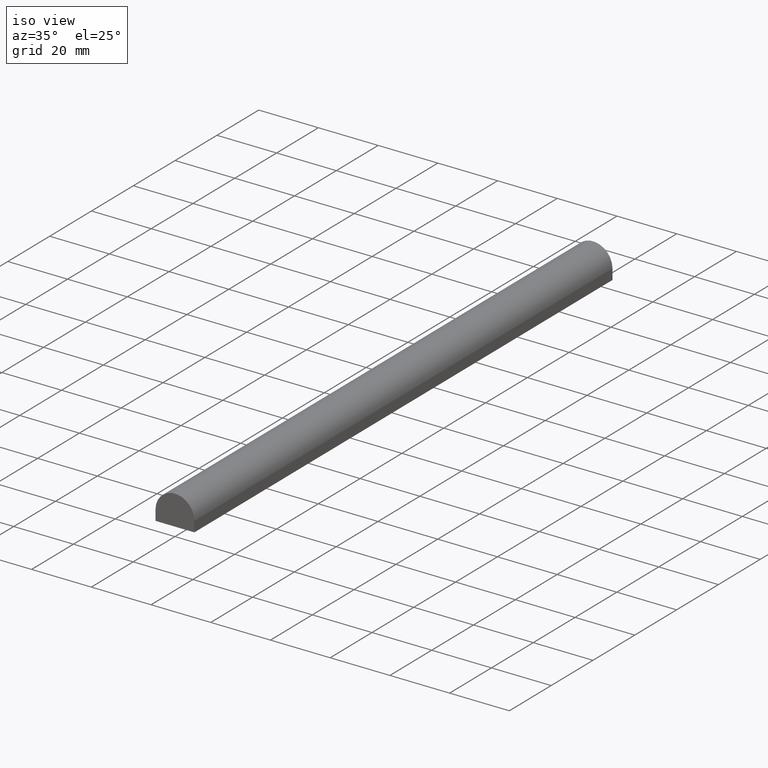
[diagram: clean part render]
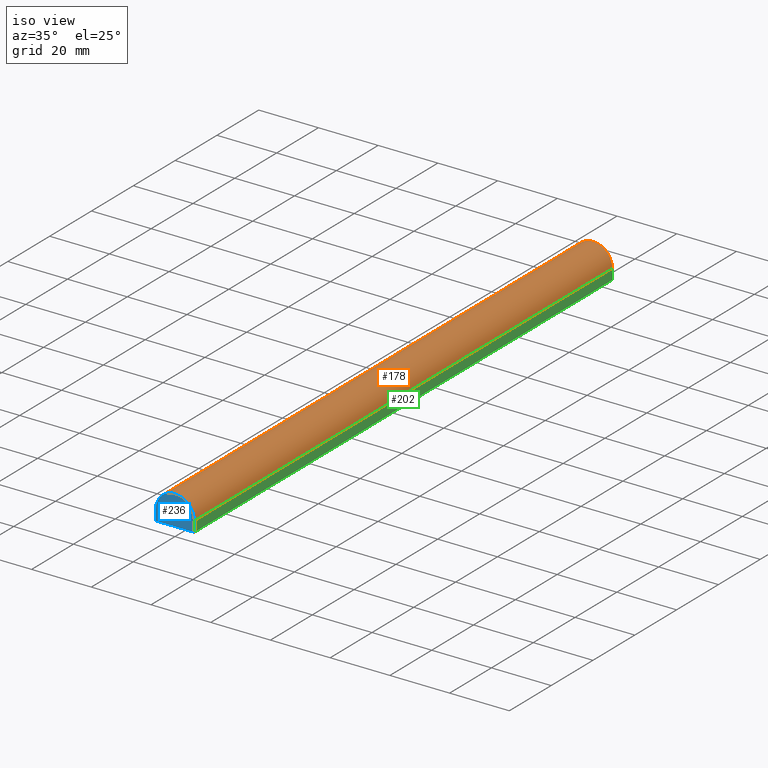
[diagram: same view with three faces highlighted in distinct colors, each labeled with its STEP entity id]
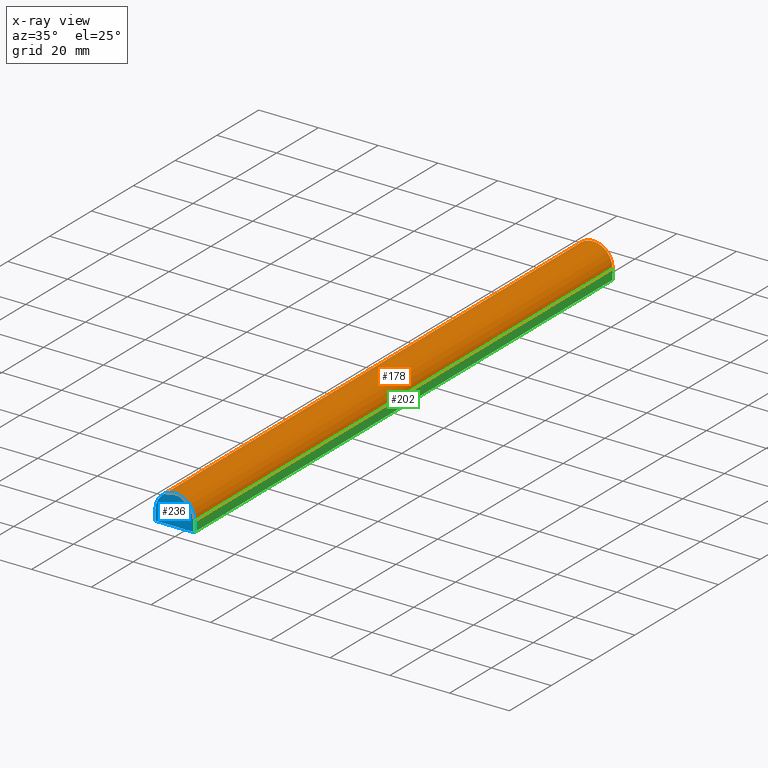
[diagram: x-ray of the same camera — body ghosted, the three highlighted faces saturated]
A machine part, iso view with three faces highlighted in distinct colors.
The next image is the same camera in x-ray (body ghosted, the three faces saturated) — at least one of them is partly hidden behind the body in this view.
Their STEP definitions:

[orange] entity #178 — the highlighted cylindrical surface (edge-blend (fillet) strip) has radius 6.5 mm, axis along (0, -1, 0).
#8 = CARTESIAN_POINT ( 'NONE',  ( 6.500000000000000000, 1000.000000000000000, -1.500000000000000000 ) ) ;
#11 = ORIENTED_EDGE ( 'NONE', *, *, #72, .T. ) ;
#13 = CYLINDRICAL_SURFACE ( 'NONE', #180, 6.500000000000000900 ) ;
#22 = CIRCLE ( 'NONE', #215, 6.499999999999999100 ) ;
#24 = VERTEX_POINT ( 'NONE', #158 ) ;
#30 = CARTESIAN_POINT ( 'NONE',  ( 0.0000000000000000000, 0.0000000000000000000, -1.500000000000000000 ) ) ;
#42 = CARTESIAN_POINT ( 'NONE',  ( 0.0000000000000000000, 200.0000000000000000, -1.500000000000000000 ) ) ;
#47 = EDGE_CURVE ( 'NONE', #24, #65, #119, .T. ) ;
#54 = DIRECTION ( 'NONE',  ( 0.0000000000000000000, 0.0000000000000000000, -1.000000000000000000 ) ) ;
#56 = EDGE_LOOP ( 'NONE', ( #120, #217, #11, #195 ) ) ;
#61 = EDGE_CURVE ( 'NONE', #65, #135, #174, .T. ) ;
#62 = DIRECTION ( 'NONE',  ( 0.0000000000000000000, 0.0000000000000000000, 1.000000000000000000 ) ) ;
#64 = VECTOR ( 'NONE', #93, 1000.000000000000000 ) ;
#65 = VERTEX_POINT ( 'NONE', #216 ) ;
#72 = EDGE_CURVE ( 'NONE', #24, #194, #22, .T. ) ;
#84 = FACE_OUTER_BOUND ( 'NONE', #56, .T. ) ;
#89 = EDGE_CURVE ( 'NONE', #194, #135, #205, .T. ) ;
#93 = DIRECTION ( 'NONE',  ( 0.0000000000000000000, -1.000000000000000000, 0.0000000000000000000 ) ) ;
#96 = CARTESIAN_POINT ( 'NONE',  ( -6.500000000000000000, 0.0000000000000000000, -1.500000000000000000 ) ) ;
#104 = DIRECTION ( 'NONE',  ( 0.0000000000000000000, -1.000000000000000000, 0.0000000000000000000 ) ) ;
#109 = AXIS2_PLACEMENT_3D ( 'NONE', #30, #197, #62 ) ;
#114 = DIRECTION ( 'NONE',  ( 0.0000000000000000000, -1.000000000000000000, 0.0000000000000000000 ) ) ;
#119 = LINE ( 'NONE', #8, #177 ) ;
#120 = ORIENTED_EDGE ( 'NONE', *, *, #61, .F. ) ;
#135 = VERTEX_POINT ( 'NONE', #96 ) ;
#153 = CARTESIAN_POINT ( 'NONE',  ( -6.500000000000000000, 1000.000000000000000, -1.500000000000000000 ) ) ;
#158 = CARTESIAN_POINT ( 'NONE',  ( 6.500000000000000000, 200.0000000000000000, -1.500000000000000000 ) ) ;
#174 = CIRCLE ( 'NONE', #109, 6.499999999999999100 ) ;
#177 = VECTOR ( 'NONE', #104, 1000.000000000000000 ) ;
#178 = ADVANCED_FACE ( 'NONE', ( #84 ), #13, .T. ) ;
#180 = AXIS2_PLACEMENT_3D ( 'NONE', #229, #114, #54 ) ;
#194 = VERTEX_POINT ( 'NONE', #227 ) ;
#195 = ORIENTED_EDGE ( 'NONE', *, *, #89, .T. ) ;
#197 = DIRECTION ( 'NONE',  ( -0.0000000000000000000, -1.000000000000000000, -0.0000000000000000000 ) ) ;
#205 = LINE ( 'NONE', #153, #64 ) ;
#209 = DIRECTION ( 'NONE',  ( 0.0000000000000000000, 0.0000000000000000000, 1.000000000000000000 ) ) ;
#210 = DIRECTION ( 'NONE',  ( -0.0000000000000000000, -1.000000000000000000, -0.0000000000000000000 ) ) ;
#215 = AXIS2_PLACEMENT_3D ( 'NONE', #42, #210, #209 ) ;
#216 = CARTESIAN_POINT ( 'NONE',  ( 6.500000000000000000, 0.0000000000000000000, -1.500000000000000000 ) ) ;
#217 = ORIENTED_EDGE ( 'NONE', *, *, #47, .F. ) ;
#227 = CARTESIAN_POINT ( 'NONE',  ( -6.500000000000000000, 200.0000000000000000, -1.500000000000000000 ) ) ;
#229 = CARTESIAN_POINT ( 'NONE',  ( 0.0000000000000000000, 1000.000000000000000, -1.500000000000000000 ) ) ;

[blue] entity #236 — the highlighted planar face has unit normal (0, 1, 0).
#1 = VERTEX_POINT ( 'NONE', #234 ) ;
#4 = CARTESIAN_POINT ( 'NONE',  ( 0.0000000000000000000, 0.0000000000000000000, 0.0000000000000000000 ) ) ;
#10 = CARTESIAN_POINT ( 'NONE',  ( 0.0000000000000000000, 0.0000000000000000000, -5.000000000000000000 ) ) ;
#14 = EDGE_CURVE ( 'NONE', #135, #1, #136, .T. ) ;
#20 = FACE_OUTER_BOUND ( 'NONE', #100, .T. ) ;
#27 = EDGE_CURVE ( 'NONE', #97, #65, #168, .T. ) ;
#30 = CARTESIAN_POINT ( 'NONE',  ( 0.0000000000000000000, 0.0000000000000000000, -1.500000000000000000 ) ) ;
#38 = AXIS2_PLACEMENT_3D ( 'NONE', #4, #149, #211 ) ;
#39 = EDGE_CURVE ( 'NONE', #1, #97, #108, .T. ) ;
#41 = VECTOR ( 'NONE', #200, 1000.000000000000000 ) ;
#61 = EDGE_CURVE ( 'NONE', #65, #135, #174, .T. ) ;
#62 = DIRECTION ( 'NONE',  ( 0.0000000000000000000, 0.0000000000000000000, 1.000000000000000000 ) ) ;
#65 = VERTEX_POINT ( 'NONE', #216 ) ;
#68 = VECTOR ( 'NONE', #218, 1000.000000000000000 ) ;
#74 = CARTESIAN_POINT ( 'NONE',  ( 6.500000000000000000, 0.0000000000000000000, -5.000000000000000000 ) ) ;
#80 = VECTOR ( 'NONE', #231, 1000.000000000000000 ) ;
#81 = ORIENTED_EDGE ( 'NONE', *, *, #61, .T. ) ;
#83 = ORIENTED_EDGE ( 'NONE', *, *, #14, .T. ) ;
#87 = ORIENTED_EDGE ( 'NONE', *, *, #27, .T. ) ;
#96 = CARTESIAN_POINT ( 'NONE',  ( -6.500000000000000000, 0.0000000000000000000, -1.500000000000000000 ) ) ;
#97 = VERTEX_POINT ( 'NONE', #74 ) ;
#100 = EDGE_LOOP ( 'NONE', ( #137, #87, #81, #83 ) ) ;
#108 = LINE ( 'NONE', #10, #80 ) ;
#109 = AXIS2_PLACEMENT_3D ( 'NONE', #30, #197, #62 ) ;
#135 = VERTEX_POINT ( 'NONE', #96 ) ;
#136 = LINE ( 'NONE', #232, #41 ) ;
#137 = ORIENTED_EDGE ( 'NONE', *, *, #39, .T. ) ;
#149 = DIRECTION ( 'NONE',  ( -0.0000000000000000000, 1.000000000000000000, 0.0000000000000000000 ) ) ;
#156 = CARTESIAN_POINT ( 'NONE',  ( 6.500000000000000000, 0.0000000000000000000, 0.0000000000000000000 ) ) ;
#168 = LINE ( 'NONE', #156, #68 ) ;
#172 = PLANE ( 'NONE',  #38 ) ;
#174 = CIRCLE ( 'NONE', #109, 6.499999999999999100 ) ;
#197 = DIRECTION ( 'NONE',  ( -0.0000000000000000000, -1.000000000000000000, -0.0000000000000000000 ) ) ;
#200 = DIRECTION ( 'NONE',  ( -0.0000000000000000000, -0.0000000000000000000, -1.000000000000000000 ) ) ;
#211 = DIRECTION ( 'NONE',  ( 1.000000000000000000, 0.0000000000000000000, 0.0000000000000000000 ) ) ;
#216 = CARTESIAN_POINT ( 'NONE',  ( 6.500000000000000000, 0.0000000000000000000, -1.500000000000000000 ) ) ;
#218 = DIRECTION ( 'NONE',  ( -0.0000000000000000000, -0.0000000000000000000, 1.000000000000000000 ) ) ;
#231 = DIRECTION ( 'NONE',  ( 1.000000000000000000, -0.0000000000000000000, -0.0000000000000000000 ) ) ;
#232 = CARTESIAN_POINT ( 'NONE',  ( -6.500000000000000000, 0.0000000000000000000, 0.0000000000000000000 ) ) ;
#234 = CARTESIAN_POINT ( 'NONE',  ( -6.500000000000000000, 0.0000000000000000000, -5.000000000000000000 ) ) ;
#236 = ADVANCED_FACE ( 'NONE', ( #20 ), #172, .F. ) ;

[green] entity #202 — the highlighted planar face has unit normal (1, 0, 0).
#5 = CARTESIAN_POINT ( 'NONE',  ( 6.500000000000000000, 1000.000000000000000, -5.000000000000000000 ) ) ;
#8 = CARTESIAN_POINT ( 'NONE',  ( 6.500000000000000000, 1000.000000000000000, -1.500000000000000000 ) ) ;
#24 = VERTEX_POINT ( 'NONE', #158 ) ;
#27 = EDGE_CURVE ( 'NONE', #97, #65, #168, .T. ) ;
#36 = CARTESIAN_POINT ( 'NONE',  ( 6.500000000000000000, 200.0000000000000000, -5.000000000000000000 ) ) ;
#45 = CARTESIAN_POINT ( 'NONE',  ( 6.500000000000000000, 200.0000000000000000, 0.0000000000000000000 ) ) ;
#47 = EDGE_CURVE ( 'NONE', #24, #65, #119, .T. ) ;
#65 = VERTEX_POINT ( 'NONE', #216 ) ;
#68 = VECTOR ( 'NONE', #218, 1000.000000000000000 ) ;
#70 = ORIENTED_EDGE ( 'NONE', *, *, #27, .F. ) ;
#74 = CARTESIAN_POINT ( 'NONE',  ( 6.500000000000000000, 0.0000000000000000000, -5.000000000000000000 ) ) ;
#76 = DIRECTION ( 'NONE',  ( 0.0000000000000000000, -1.000000000000000000, 0.0000000000000000000 ) ) ;
#82 = FACE_OUTER_BOUND ( 'NONE', #169, .T. ) ;
#88 = LINE ( 'NONE', #5, #222 ) ;
#95 = PLANE ( 'NONE',  #98 ) ;
#97 = VERTEX_POINT ( 'NONE', #74 ) ;
#98 = AXIS2_PLACEMENT_3D ( 'NONE', #185, #151, #191 ) ;
#104 = DIRECTION ( 'NONE',  ( 0.0000000000000000000, -1.000000000000000000, 0.0000000000000000000 ) ) ;
#118 = EDGE_CURVE ( 'NONE', #184, #97, #88, .T. ) ;
#119 = LINE ( 'NONE', #8, #177 ) ;
#129 = ORIENTED_EDGE ( 'NONE', *, *, #118, .F. ) ;
#134 = LINE ( 'NONE', #45, #139 ) ;
#139 = VECTOR ( 'NONE', #145, 1000.000000000000000 ) ;
#145 = DIRECTION ( 'NONE',  ( -0.0000000000000000000, -0.0000000000000000000, 1.000000000000000000 ) ) ;
#151 = DIRECTION ( 'NONE',  ( 1.000000000000000000, 0.0000000000000000000, 0.0000000000000000000 ) ) ;
#156 = CARTESIAN_POINT ( 'NONE',  ( 6.500000000000000000, 0.0000000000000000000, 0.0000000000000000000 ) ) ;
#158 = CARTESIAN_POINT ( 'NONE',  ( 6.500000000000000000, 200.0000000000000000, -1.500000000000000000 ) ) ;
#168 = LINE ( 'NONE', #156, #68 ) ;
#169 = EDGE_LOOP ( 'NONE', ( #70, #129, #175, #173 ) ) ;
#173 = ORIENTED_EDGE ( 'NONE', *, *, #47, .T. ) ;
#175 = ORIENTED_EDGE ( 'NONE', *, *, #240, .T. ) ;
#177 = VECTOR ( 'NONE', #104, 1000.000000000000000 ) ;
#184 = VERTEX_POINT ( 'NONE', #36 ) ;
#185 = CARTESIAN_POINT ( 'NONE',  ( 6.500000000000000000, 1000.000000000000000, -5.000000000000000000 ) ) ;
#191 = DIRECTION ( 'NONE',  ( 0.0000000000000000000, 0.0000000000000000000, -1.000000000000000000 ) ) ;
#202 = ADVANCED_FACE ( 'NONE', ( #82 ), #95, .T. ) ;
#216 = CARTESIAN_POINT ( 'NONE',  ( 6.500000000000000000, 0.0000000000000000000, -1.500000000000000000 ) ) ;
#218 = DIRECTION ( 'NONE',  ( -0.0000000000000000000, -0.0000000000000000000, 1.000000000000000000 ) ) ;
#222 = VECTOR ( 'NONE', #76, 1000.000000000000000 ) ;
#240 = EDGE_CURVE ( 'NONE', #184, #24, #134, .T. ) ;